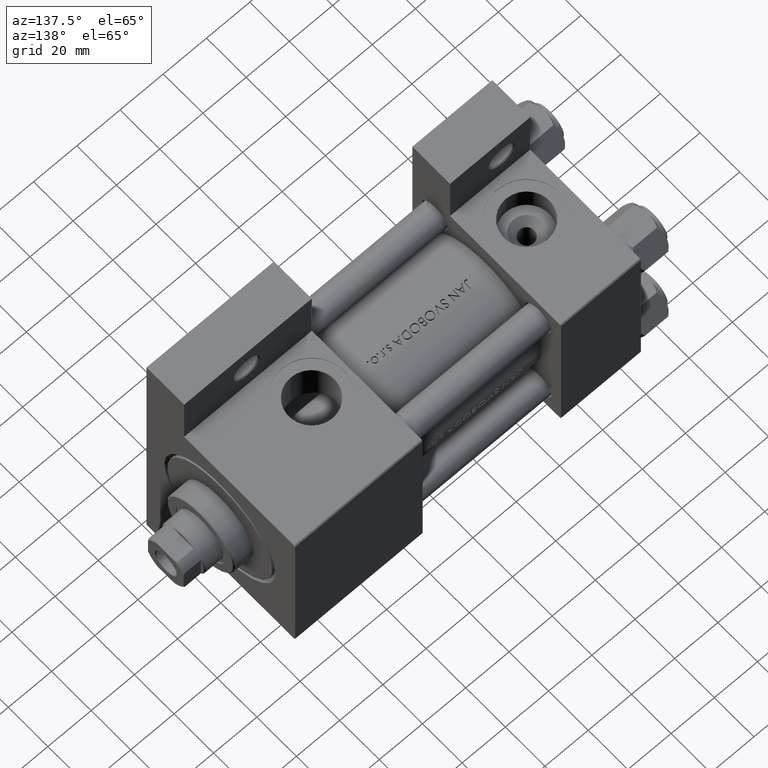
[diagram: clean part render]
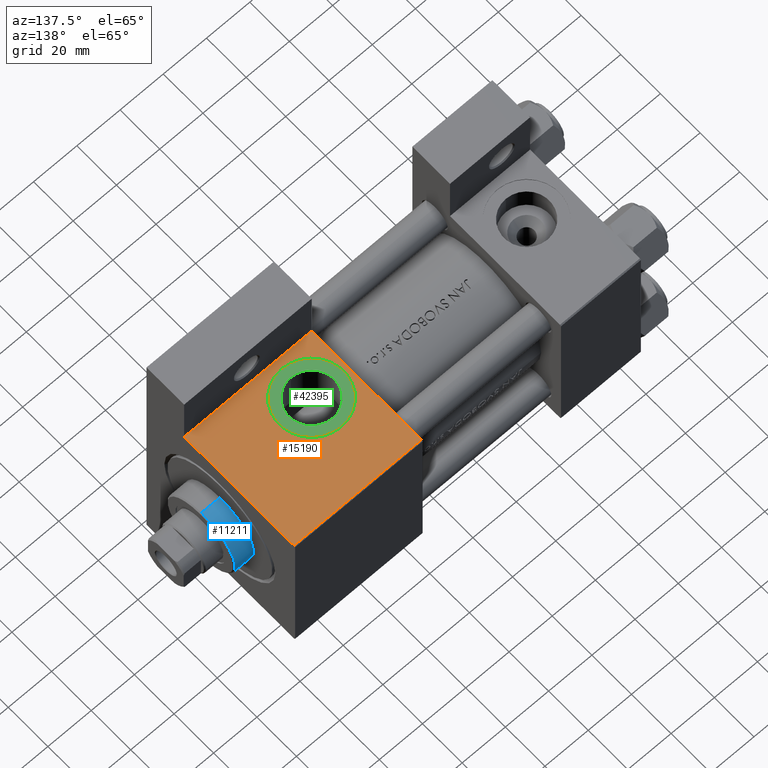
[diagram: same view with three faces highlighted in distinct colors, each labeled with its STEP entity id]
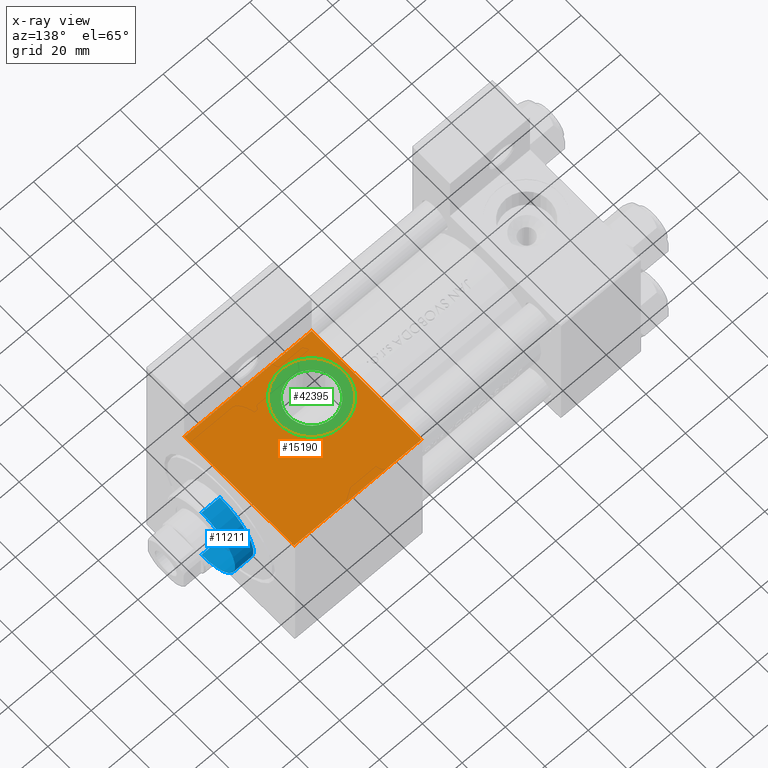
[diagram: x-ray of the same camera — body ghosted, the three highlighted faces saturated]
A machine part, auxiliary view with three faces highlighted in distinct colors.
The next image is the same camera in x-ray (body ghosted, the three faces saturated) — at least one of them is partly hidden behind the body in this view.
Their STEP definitions:

[orange] entity #15190 — the highlighted planar face has unit normal (0, -0, -1).
#2435 = CARTESIAN_POINT ( 'NONE',  ( 101.0000000000000000, -37.50000000000000000, -18.50000000000000000 ) ) ;
#2756 = DIRECTION ( 'NONE',  ( 0.000000000000000000, 9.251858538542972814E-17, 1.000000000000000000 ) ) ;
#4510 = ORIENTED_EDGE ( 'NONE', *, *, #39561, .F. ) ;
#5059 = LINE ( 'NONE', #32669, #36804 ) ;
#5233 = DIRECTION ( 'NONE',  ( 0.000000000000000000, 0.000000000000000000, -1.000000000000000000 ) ) ;
#5352 = EDGE_CURVE ( 'NONE', #38737, #24725, #23045, .T. ) ;
#8056 = LINE ( 'NONE', #45886, #28631 ) ;
#8595 = CARTESIAN_POINT ( 'NONE',  ( 160.0000000000000000, -37.50000000000000000, 37.49999999999997868 ) ) ;
#9322 = LINE ( 'NONE', #8595, #11971 ) ;
#10705 = EDGE_LOOP ( 'NONE', ( #27931, #4510 ) ) ;
#11108 = CARTESIAN_POINT ( 'NONE',  ( 118.0000000000000142, -37.50000000000000000, -15.00000000000000888 ) ) ;
#11157 = VECTOR ( 'NONE', #12086, 1000.000000000000000 ) ;
#11787 = DIRECTION ( 'NONE',  ( 1.000000000000000000, -1.176083712526649442E-16, 0.000000000000000000 ) ) ;
#11971 = VECTOR ( 'NONE', #20284, 1000.000000000000000 ) ;
#12086 = DIRECTION ( 'NONE',  ( -1.000000000000000000, 0.000000000000000000, 0.000000000000000000 ) ) ;
#12166 = CARTESIAN_POINT ( 'NONE',  ( 160.0000000000000000, -37.50000000000000000, 36.99999999999997868 ) ) ;
#13410 = AXIS2_PLACEMENT_3D ( 'NONE', #20913, #23936, #5233 ) ;
#13482 = PLANE ( 'NONE',  #21171 ) ;
#13953 = CARTESIAN_POINT ( 'NONE',  ( 101.0000000000000000, -37.50000000000000000, 36.99999999999997868 ) ) ;
#15190 = ADVANCED_FACE ( 'NONE', ( #47584, #28213 ), #13482, .F. ) ;
#17425 = AXIS2_PLACEMENT_3D ( 'NONE', #37727, #22789, #37970 ) ;
#18363 = CARTESIAN_POINT ( 'NONE',  ( 118.0000000000000142, -37.50000000000000000, 15.00000000000001421 ) ) ;
#18727 = ORIENTED_EDGE ( 'NONE', *, *, #34122, .T. ) ;
#20284 = DIRECTION ( 'NONE',  ( 0.000000000000000000, -9.251858538542972814E-17, -1.000000000000000000 ) ) ;
#20434 = VERTEX_POINT ( 'NONE', #2435 ) ;
#20913 = CARTESIAN_POINT ( 'NONE',  ( 118.0000000000000142, -37.50000000000000000, 3.469446951953615767E-15 ) ) ;
#21171 = AXIS2_PLACEMENT_3D ( 'NONE', #29156, #28444, #2756 ) ;
#22169 = CIRCLE ( 'NONE', #13410, 15.00000000000001243 ) ;
#22789 = DIRECTION ( 'NONE',  ( 0.000000000000000000, -1.000000000000000000, -8.673617379884036705E-17 ) ) ;
#22972 = EDGE_CURVE ( 'NONE', #32746, #25091, #38901, .T. ) ;
#23045 = LINE ( 'NONE', #41721, #11157 ) ;
#23542 = ORIENTED_EDGE ( 'NONE', *, *, #5352, .T. ) ;
#23936 = DIRECTION ( 'NONE',  ( 0.000000000000000000, -1.000000000000000000, -8.673617379884036705E-17 ) ) ;
#24725 = VERTEX_POINT ( 'NONE', #13953 ) ;
#25091 = VERTEX_POINT ( 'NONE', #18363 ) ;
#27931 = ORIENTED_EDGE ( 'NONE', *, *, #22972, .F. ) ;
#28213 = FACE_OUTER_BOUND ( 'NONE', #36568, .T. ) ;
#28444 = DIRECTION ( 'NONE',  ( 0.000000000000000000, 1.000000000000000000, -9.251858538542972814E-17 ) ) ;
#28631 = VECTOR ( 'NONE', #11787, 1000.000000000000000 ) ;
#29156 = CARTESIAN_POINT ( 'NONE',  ( 160.0000000000000000, -37.50000000000000000, 37.49999999999997868 ) ) ;
#32669 = CARTESIAN_POINT ( 'NONE',  ( 101.0000000000000000, -37.50000000000000000, 37.49999999999997868 ) ) ;
#32746 = VERTEX_POINT ( 'NONE', #11108 ) ;
#34122 = EDGE_CURVE ( 'NONE', #24725, #20434, #5059, .T. ) ;
#34479 = CARTESIAN_POINT ( 'NONE',  ( 160.0000000000000000, -37.50000000000000711, -18.50000000000000355 ) ) ;
#35675 = DIRECTION ( 'NONE',  ( 0.000000000000000000, -9.251858538542972814E-17, -1.000000000000000000 ) ) ;
#35753 = VERTEX_POINT ( 'NONE', #34479 ) ;
#36568 = EDGE_LOOP ( 'NONE', ( #47674, #23542, #18727, #42720 ) ) ;
#36804 = VECTOR ( 'NONE', #35675, 1000.000000000000000 ) ;
#37727 = CARTESIAN_POINT ( 'NONE',  ( 118.0000000000000142, -37.50000000000000000, 3.469446951953615767E-15 ) ) ;
#37970 = DIRECTION ( 'NONE',  ( 0.000000000000000000, 0.000000000000000000, -1.000000000000000000 ) ) ;
#38737 = VERTEX_POINT ( 'NONE', #12166 ) ;
#38901 = CIRCLE ( 'NONE', #17425, 15.00000000000001243 ) ;
#39561 = EDGE_CURVE ( 'NONE', #25091, #32746, #22169, .T. ) ;
#41721 = CARTESIAN_POINT ( 'NONE',  ( 160.0000000000000000, -37.50000000000000000, 36.99999999999997868 ) ) ;
#42720 = ORIENTED_EDGE ( 'NONE', *, *, #45939, .T. ) ;
#45886 = CARTESIAN_POINT ( 'NONE',  ( 101.0000000000000000, -37.50000000000000000, -18.50000000000000000 ) ) ;
#45939 = EDGE_CURVE ( 'NONE', #20434, #35753, #8056, .T. ) ;
#46893 = EDGE_CURVE ( 'NONE', #38737, #35753, #9322, .T. ) ;
#47584 = FACE_BOUND ( 'NONE', #10705, .T. ) ;
#47674 = ORIENTED_EDGE ( 'NONE', *, *, #46893, .F. ) ;

[blue] entity #11211 — the highlighted cylindrical surface (partial cylindrical patch) has radius 17 mm, axis along (-1, -0, 0).
#710 = AXIS2_PLACEMENT_3D ( 'NONE', #29853, #3688, #37066 ) ;
#1811 = DIRECTION ( 'NONE',  ( -0.000000000000000000, -0.000000000000000000, -1.000000000000000000 ) ) ;
#3146 = EDGE_LOOP ( 'NONE', ( #37284, #27505, #43379, #4459 ) ) ;
#3688 = DIRECTION ( 'NONE',  ( 0.000000000000000000, 0.000000000000000000, 1.000000000000000000 ) ) ;
#4187 = VERTEX_POINT ( 'NONE', #41265 ) ;
#4459 = ORIENTED_EDGE ( 'NONE', *, *, #48232, .F. ) ;
#8566 = DIRECTION ( 'NONE',  ( -1.000000000000000000, 0.000000000000000000, 0.000000000000000000 ) ) ;
#9283 = CARTESIAN_POINT ( 'NONE',  ( 17.00000000000000000, 2.081899558550500280E-15, 37.69999999999999574 ) ) ;
#9531 = FACE_OUTER_BOUND ( 'NONE', #3146, .T. ) ;
#11190 = LINE ( 'NONE', #29617, #23985 ) ;
#11211 = ADVANCED_FACE ( 'NONE', ( #9531 ), #39181, .T. ) ;
#12661 = CARTESIAN_POINT ( 'NONE',  ( 17.00000000000000000, 2.081899558550500280E-15, 28.69999999999999929 ) ) ;
#12679 = CIRCLE ( 'NONE', #710, 17.00000000000000000 ) ;
#14668 = DIRECTION ( 'NONE',  ( -0.000000000000000000, -0.000000000000000000, -1.000000000000000000 ) ) ;
#15913 = AXIS2_PLACEMENT_3D ( 'NONE', #43173, #20265, #16528 ) ;
#16524 = VERTEX_POINT ( 'NONE', #40755 ) ;
#16528 = DIRECTION ( 'NONE',  ( 1.000000000000000000, 0.000000000000000000, 0.000000000000000000 ) ) ;
#19844 = CIRCLE ( 'NONE', #15913, 17.00000000000000000 ) ;
#19964 = VECTOR ( 'NONE', #23746, 1000.000000000000000 ) ;
#20265 = DIRECTION ( 'NONE',  ( 0.000000000000000000, 0.000000000000000000, -1.000000000000000000 ) ) ;
#23110 = EDGE_CURVE ( 'NONE', #4187, #16524, #19844, .T. ) ;
#23746 = DIRECTION ( 'NONE',  ( -0.000000000000000000, -0.000000000000000000, -1.000000000000000000 ) ) ;
#23985 = VECTOR ( 'NONE', #14668, 1000.000000000000000 ) ;
#27505 = ORIENTED_EDGE ( 'NONE', *, *, #30182, .T. ) ;
#28614 = VERTEX_POINT ( 'NONE', #30521 ) ;
#29617 = CARTESIAN_POINT ( 'NONE',  ( -17.00000000000000000, 0.000000000000000000, 37.69999999999999574 ) ) ;
#29853 = CARTESIAN_POINT ( 'NONE',  ( 0.000000000000000000, 0.000000000000000000, 28.69999999999999929 ) ) ;
#30182 = EDGE_CURVE ( 'NONE', #16524, #35230, #34934, .T. ) ;
#30521 = CARTESIAN_POINT ( 'NONE',  ( -17.00000000000000000, 0.000000000000000000, 28.69999999999999929 ) ) ;
#31533 = AXIS2_PLACEMENT_3D ( 'NONE', #39422, #1811, #8566 ) ;
#34934 = LINE ( 'NONE', #9283, #19964 ) ;
#35230 = VERTEX_POINT ( 'NONE', #12661 ) ;
#37066 = DIRECTION ( 'NONE',  ( 1.000000000000000000, 0.000000000000000000, 0.000000000000000000 ) ) ;
#37284 = ORIENTED_EDGE ( 'NONE', *, *, #23110, .T. ) ;
#39181 = CYLINDRICAL_SURFACE ( 'NONE', #31533, 17.00000000000000000 ) ;
#39422 = CARTESIAN_POINT ( 'NONE',  ( 0.000000000000000000, 0.000000000000000000, 37.69999999999999574 ) ) ;
#40356 = EDGE_CURVE ( 'NONE', #35230, #28614, #12679, .T. ) ;
#40755 = CARTESIAN_POINT ( 'NONE',  ( 17.00000000000000000, 2.081899558550500280E-15, 37.19999999999999574 ) ) ;
#41265 = CARTESIAN_POINT ( 'NONE',  ( -17.00000000000000000, 0.000000000000000000, 37.19999999999999574 ) ) ;
#43173 = CARTESIAN_POINT ( 'NONE',  ( 0.000000000000000000, 0.000000000000000000, 37.19999999999999574 ) ) ;
#43379 = ORIENTED_EDGE ( 'NONE', *, *, #40356, .T. ) ;
#48232 = EDGE_CURVE ( 'NONE', #4187, #28614, #11190, .T. ) ;

[green] entity #42395 — the highlighted planar face has unit normal (0, -0, 1).
#431 = ORIENTED_EDGE ( 'NONE', *, *, #9021, .T. ) ;
#1545 = CARTESIAN_POINT ( 'NONE',  ( 118.0000000000000142, -37.29999999999999716, 3.486794186713383443E-15 ) ) ;
#1998 = DIRECTION ( 'NONE',  ( 0.000000000000000000, -1.000000000000000000, -8.673617379884036705E-17 ) ) ;
#2693 = DIRECTION ( 'NONE',  ( 0.000000000000000000, -1.000000000000000000, -8.673617379884036705E-17 ) ) ;
#2740 = CARTESIAN_POINT ( 'NONE',  ( 118.0000000000000142, -37.29999999999999716, 3.486794186713383443E-15 ) ) ;
#4122 = VERTEX_POINT ( 'NONE', #17619 ) ;
#6109 = EDGE_LOOP ( 'NONE', ( #42058, #21273 ) ) ;
#6893 = VERTEX_POINT ( 'NONE', #25597 ) ;
#7763 = EDGE_LOOP ( 'NONE', ( #431, #37508 ) ) ;
#9021 = EDGE_CURVE ( 'NONE', #4122, #6893, #43067, .T. ) ;
#16152 = FACE_OUTER_BOUND ( 'NONE', #7763, .T. ) ;
#16751 = DIRECTION ( 'NONE',  ( 0.000000000000000000, -1.000000000000000000, -8.673617379884036705E-17 ) ) ;
#17516 = CIRCLE ( 'NONE', #35033, 15.00000000000001243 ) ;
#17619 = CARTESIAN_POINT ( 'NONE',  ( 118.0000000000000142, -37.29999999999999716, -15.00000000000000888 ) ) ;
#18062 = CARTESIAN_POINT ( 'NONE',  ( 118.0000000000000142, -37.29999999999999716, 10.48000000000000398 ) ) ;
#18128 = DIRECTION ( 'NONE',  ( 0.000000000000000000, 0.000000000000000000, -1.000000000000000000 ) ) ;
#21273 = ORIENTED_EDGE ( 'NONE', *, *, #41248, .F. ) ;
#23192 = CARTESIAN_POINT ( 'NONE',  ( 118.0000000000000142, -37.29999999999999716, -10.47999999999999687 ) ) ;
#25597 = CARTESIAN_POINT ( 'NONE',  ( 118.0000000000000142, -37.29999999999999716, 15.00000000000001421 ) ) ;
#25637 = CARTESIAN_POINT ( 'NONE',  ( 118.0000000000000142, -37.29999999999999716, 3.486794186713383443E-15 ) ) ;
#27041 = CARTESIAN_POINT ( 'NONE',  ( 118.0000000000000142, -37.29999999999999716, 3.486794186713383443E-15 ) ) ;
#29398 = AXIS2_PLACEMENT_3D ( 'NONE', #35077, #42783, #46769 ) ;
#32795 = VERTEX_POINT ( 'NONE', #18062 ) ;
#33361 = DIRECTION ( 'NONE',  ( 0.000000000000000000, 0.000000000000000000, -1.000000000000000000 ) ) ;
#34169 = EDGE_CURVE ( 'NONE', #45292, #32795, #38421, .T. ) ;
#34173 = CIRCLE ( 'NONE', #48444, 10.48000000000000043 ) ;
#35033 = AXIS2_PLACEMENT_3D ( 'NONE', #27041, #2693, #37062 ) ;
#35077 = CARTESIAN_POINT ( 'NONE',  ( 118.0000000000000142, -37.29999999999999716, 3.486794186713383443E-15 ) ) ;
#35328 = FACE_BOUND ( 'NONE', #6109, .T. ) ;
#36029 = AXIS2_PLACEMENT_3D ( 'NONE', #1545, #16751, #47132 ) ;
#37062 = DIRECTION ( 'NONE',  ( 0.000000000000000000, 0.000000000000000000, -1.000000000000000000 ) ) ;
#37071 = DIRECTION ( 'NONE',  ( 0.000000000000000000, -1.000000000000000000, -8.673617379884036705E-17 ) ) ;
#37508 = ORIENTED_EDGE ( 'NONE', *, *, #46840, .T. ) ;
#38421 = CIRCLE ( 'NONE', #36029, 10.48000000000000043 ) ;
#38565 = PLANE ( 'NONE',  #29398 ) ;
#40670 = AXIS2_PLACEMENT_3D ( 'NONE', #2740, #1998, #33361 ) ;
#41248 = EDGE_CURVE ( 'NONE', #32795, #45292, #34173, .T. ) ;
#42058 = ORIENTED_EDGE ( 'NONE', *, *, #34169, .F. ) ;
#42395 = ADVANCED_FACE ( 'NONE', ( #35328, #16152 ), #38565, .T. ) ;
#42783 = DIRECTION ( 'NONE',  ( 0.000000000000000000, -1.000000000000000000, -8.673617379884036705E-17 ) ) ;
#43067 = CIRCLE ( 'NONE', #40670, 15.00000000000001243 ) ;
#45292 = VERTEX_POINT ( 'NONE', #23192 ) ;
#46769 = DIRECTION ( 'NONE',  ( 0.000000000000000000, 8.673617379884036705E-17, -1.000000000000000000 ) ) ;
#46840 = EDGE_CURVE ( 'NONE', #6893, #4122, #17516, .T. ) ;
#47132 = DIRECTION ( 'NONE',  ( 0.000000000000000000, 0.000000000000000000, -1.000000000000000000 ) ) ;
#48444 = AXIS2_PLACEMENT_3D ( 'NONE', #25637, #37071, #18128 ) ;